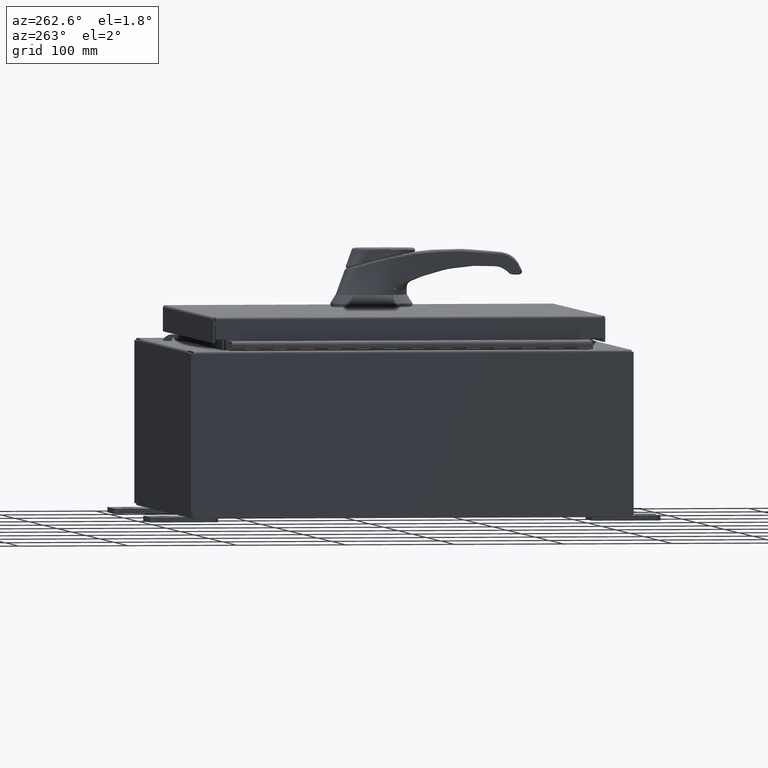
[diagram: clean part render]
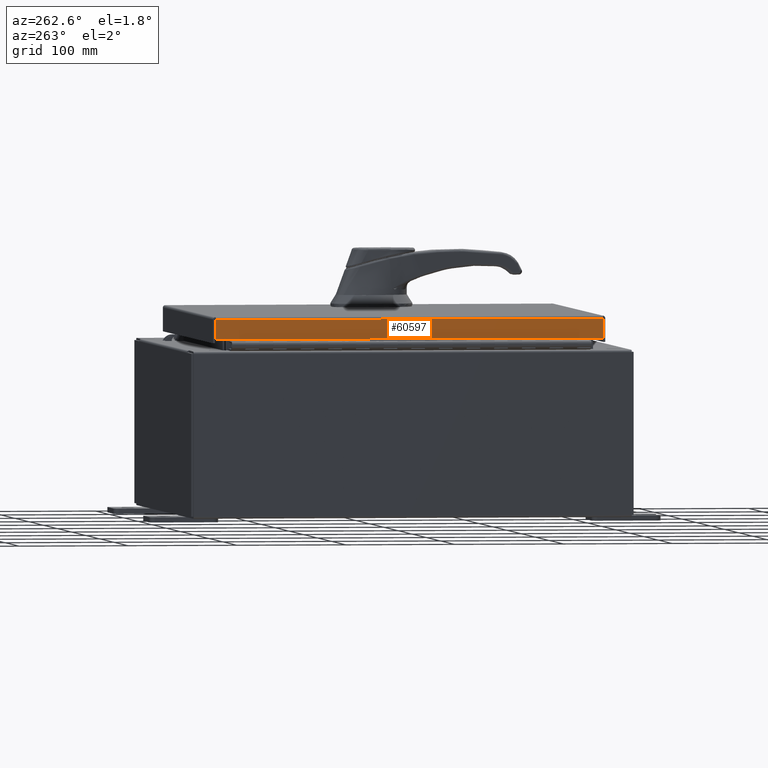
[diagram: same view with one face highlighted and labeled with its STEP entity id]
A machine part, auxiliary view. The second image highlights one B-rep face of the part: STEP entity #60597.
In plain terms, the highlighted planar face has unit normal (1, 0, -0).
Its self-contained STEP definition (entity closure, byte-faithful):
#1791 = CARTESIAN_POINT ( 'NONE',  ( -7.078000000000001200, -7.005157864376269700, -0.07469999999999976700 ) ) ;
#1856 = CARTESIAN_POINT ( 'NONE',  ( -7.078000000000001200, -7.094000000000000300, -0.08770000000000004200 ) ) ;
#3497 = ORIENTED_EDGE ( 'NONE', *, *, #63052, .F. ) ;
#5106 = VERTEX_POINT ( 'NONE', #10745 ) ;
#10745 = CARTESIAN_POINT ( 'NONE',  ( -7.078000000000003800, -7.005157864376264400, -0.7949999999999996000 ) ) ;
#11691 = LINE ( 'NONE', #22100, #74369 ) ;
#16127 = CARTESIAN_POINT ( 'NONE',  ( -7.078000000000001200, 7.005157864376269700, 7.065308821832277800E-014 ) ) ;
#18230 = DIRECTION ( 'NONE',  ( -3.034122441942816500E-015, 6.982962677686265900E-015, -1.000000000000000000 ) ) ;
#22100 = CARTESIAN_POINT ( 'NONE',  ( -7.078000000000003800, -7.094000000000000300, -0.7949999999999997100 ) ) ;
#30315 = DIRECTION ( 'NONE',  ( 4.379057701015054300E-047, 1.000000000000000000, 1.251551449028595500E-016 ) ) ;
#31881 = DIRECTION ( 'NONE',  ( -3.034122441942816500E-015, 6.982962677686265900E-015, -1.000000000000000000 ) ) ;
#32582 = VECTOR ( 'NONE', #18230, 39.37007874015748100 ) ;
#37882 = ORIENTED_EDGE ( 'NONE', *, *, #77005, .T. ) ;
#40707 = PLANE ( 'NONE',  #90650 ) ;
#40827 = VERTEX_POINT ( 'NONE', #81140 ) ;
#41770 = ORIENTED_EDGE ( 'NONE', *, *, #47502, .F. ) ;
#45873 = LINE ( 'NONE', #1856, #65100 ) ;
#47502 = EDGE_CURVE ( 'NONE', #95940, #40827, #45873, .T. ) ;
#48892 = DIRECTION ( 'NONE',  ( -3.034122441942816500E-015, 0.0000000000000000000, -1.000000000000000000 ) ) ;
#56733 = VECTOR ( 'NONE', #31881, 39.37007874015748100 ) ;
#59077 = DIRECTION ( 'NONE',  ( 1.460523207209120200E-031, -1.000000000000000000, -7.701855070945201600E-017 ) ) ;
#60597 = ADVANCED_FACE ( 'NONE', ( #66786 ), #40707, .F. ) ;
#63052 = EDGE_CURVE ( 'NONE', #5106, #78453, #11691, .T. ) ;
#63879 = CARTESIAN_POINT ( 'NONE',  ( -7.078000000000003800, 7.005157864376276000, -0.7949999999999979300 ) ) ;
#63959 = CARTESIAN_POINT ( 'NONE',  ( -7.078000000000001200, -2.687771647762799800E-030, 2.173633230008284500E-014 ) ) ;
#65100 = VECTOR ( 'NONE', #59077, 39.37007874015748100 ) ;
#66786 = FACE_OUTER_BOUND ( 'NONE', #103102, .T. ) ;
#74369 = VECTOR ( 'NONE', #30315, 39.37007874015748100 ) ;
#77005 = EDGE_CURVE ( 'NONE', #95940, #78453, #97604, .T. ) ;
#78453 = VERTEX_POINT ( 'NONE', #63879 ) ;
#81140 = CARTESIAN_POINT ( 'NONE',  ( -7.078000000000001200, -7.005157864376269700, -0.08769999999999951400 ) ) ;
#90650 = AXIS2_PLACEMENT_3D ( 'NONE', #63959, #97850, #48892 ) ;
#91335 = EDGE_CURVE ( 'NONE', #40827, #5106, #92613, .T. ) ;
#92613 = LINE ( 'NONE', #1791, #32582 ) ;
#95940 = VERTEX_POINT ( 'NONE', #102098 ) ;
#96589 = ORIENTED_EDGE ( 'NONE', *, *, #91335, .F. ) ;
#97604 = LINE ( 'NONE', #16127, #56733 ) ;
#97850 = DIRECTION ( 'NONE',  ( 1.000000000000000000, 3.797360338743711400E-031, -3.034122441942816500E-015 ) ) ;
#102098 = CARTESIAN_POINT ( 'NONE',  ( -7.078000000000001200, 7.005157864376269700, -0.08769999999999895900 ) ) ;
#103102 = EDGE_LOOP ( 'NONE', ( #41770, #37882, #3497, #96589 ) ) ;